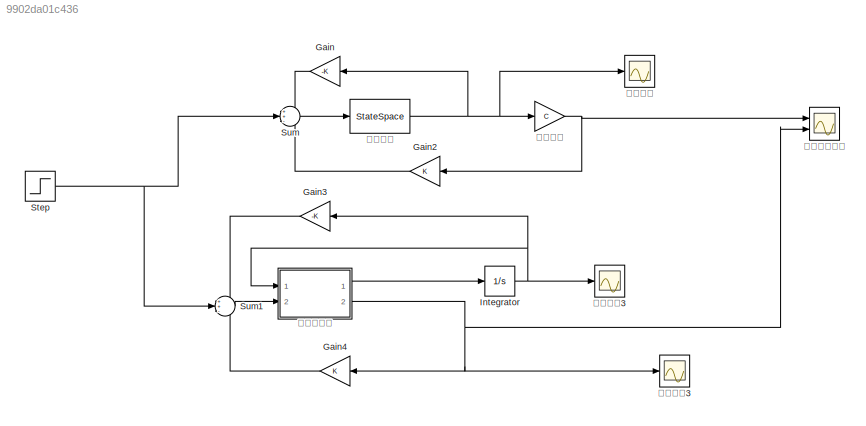
MODEL slx_9902da01c436
KIND model
CONFIG AbsTol = auto
CONFIG FixedStep = auto
CONFIG MaxStep = auto
CONFIG MinStep = auto
CONFIG RelTol = 1e-3
CONFIG SampleTimeConstraint = Unconstrained
CONFIG Solver = VariableStepAuto
CONFIG SolverMode = SingleTasking
CONFIG SolverName = VariableStepAuto
CONFIG StartTime = 0.0
CONFIG StopTime = 20.0
BLOCK [Gain] Gain
  Gain = -K
  Multiplication = Matrix(K*u)
BLOCK [Gain] Gain2
BLOCK [Gain] Gain3
  Gain = -K
  Multiplication = Matrix(K*u)
BLOCK [Gain] Gain4
BLOCK [Integrator] Integrator
  InitialCondition = Init
  Ports = [1, 1]
BLOCK [Step] Step
  SampleTime = 0
BLOCK [Sum] Sum
  Inputs = ++-
  Ports = [3, 1]
BLOCK [Sum] Sum1
  Inputs = ++-
  Ports = [3, 1]
BLOCK [StateSpace] 状态变量
  A = A1
  B = B1
  C = eye(4)
  D = [0;0;0;0]
  Ports = [1, 1]
  X0 = Init
BLOCK [Scope] 状态响应
  Floating = off
  NumInputPorts = 1
  Ports = [1]
  ScopeSpecificationString = Simulink.scopes.TimeScopeBlockCfg('CurrentConfiguration', extmgr.ConfigurationSet(extmgr.Configuration('Core','General UI',true,'FigureColor',[0.941176470588235 0.941176470588235 0.941176470588235]),extmgr.Configuration('Core','Source UI',true),extmgr.Configuration('Sources','WiredSimulink',true,'DataLoggingVariableName','ScopeData1'),extmgr.Configuration('Visuals','Time Domain',true,'SerializedDi...<+1737ch>
BLOCK [Scope] 状态响应3
  Floating = off
  NumInputPorts = 1
  Ports = [1]
  ScopeSpecificationString = Simulink.scopes.TimeScopeBlockCfg('CurrentConfiguration', extmgr.ConfigurationSet(extmgr.Configuration('Core','General UI',true,'FigureColor',[0.941176470588235 0.941176470588235 0.941176470588235]),extmgr.Configuration('Core','Source UI',true),extmgr.Configuration('Sources','WiredSimulink',true,'DataLoggingVariableName','ScopeData3'),extmgr.Configuration('Visuals','Time Domain',true,'SerializedDi...<+1824ch>
BLOCK [Gain] 线性系统
  Gain = C
  Multiplication = Matrix(K*u)
BLOCK [Scope] 输出响应3
  Floating = off
  NumInputPorts = 1
  Ports = [1]
  ScopeSpecificationString = Simulink.scopes.TimeScopeBlockCfg('CurrentConfiguration', extmgr.ConfigurationSet(extmgr.Configuration('Core','General UI',true,'FigureColor',[0.941176470588235 0.941176470588235 0.941176470588235]),extmgr.Configuration('Core','Source UI',true),extmgr.Configuration('Sources','WiredSimulink',true,'DataLoggingVariableName','ScopeData4'),extmgr.Configuration('Visuals','Time Domain',true,'SerializedDi...<+1807ch>
BLOCK [Scope] 输出响应比较
  Floating = off
  NumInputPorts = 2
  Ports = [2]
  ScopeSpecificationString = Simulink.scopes.TimeScopeBlockCfg('CurrentConfiguration', extmgr.ConfigurationSet(extmgr.Configuration('Core','General UI',true,'FigureColor',[1 1 1]),extmgr.Configuration('Core','Source UI',true),extmgr.Configuration('Sources','WiredSimulink',true),extmgr.Configuration('Visuals','Time Domain',true,'SerializedDisplays',{struct('MinYLimReal','-0.29651','MaxYLimReal','1.13024','YLabelReal','幅值','Min...<+1753ch>
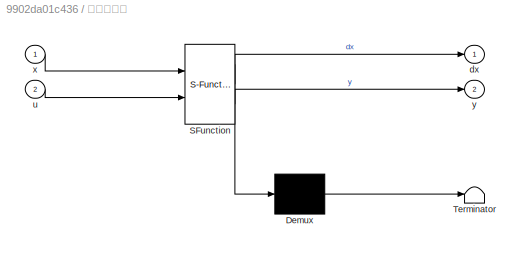
BLOCK [SubSystem] 非线性系统
  ErrorFcn = Stateflow.Translate.translate
  PermitHierarchicalResolution = ExplicitOnly
  Ports = [2, 2]
  RequestExecContextInheritance = off
  SFBlockType = MATLAB Function
  TreatAsAtomicUnit = on
BLOCK [Demux] 非线性系统/ Demux 
  Outputs = 1
  Ports = [1, 1]
BLOCK [S-Function] 非线性系统/ SFunction 
  EnableBusSupport = on
  FunctionName = sf_sfun
  PortCounts = [2 3]
  Ports = [2, 3]
  SFunctionDeploymentMode = off
  Tag = Stateflow S-Function Daolibai_design_SFandOFtu 4
BLOCK [Terminator] 非线性系统/ Terminator 
BLOCK [Outport] 非线性系统/dx
BLOCK [Inport] 非线性系统/u
  Port = 2
BLOCK [Inport] 非线性系统/x
BLOCK [Outport] 非线性系统/y
  Port = 2
LINE Gain2:1 -> Sum:3
LINE Gain3:1 -> Sum1:1
LINE Gain4:1 -> Sum1:3
LINE Gain:1 -> Sum:1
NET Integrator:1 -> Gain3:1, 状态响应3:1, 非线性系统:1
NET Step:1 -> Sum1:2, Sum:2
LINE Sum1:1 -> 非线性系统:2
LINE Sum:1 -> 状态变量:1
NET 状态变量:1 -> Gain:1, 状态响应:1, 线性系统:1
NET 线性系统:1 -> Gain2:1, 输出响应比较:1
LINE 非线性系统:1 -> Integrator:1
NET 非线性系统:2 -> Gain4:1, 输出响应3:1, 输出响应比较:2
note: NET lines group one-source signal fan-out (src -> all destinations, sorted); 1:1 wires keep LINE
CHART 非线性系统 states=1 transitions=1
  STATE_LABEL 'eML_blk_kernel()'
  STATE_LABEL 'SCRIPT:\nfunction [dx,y] = fcn(x,u)\ndx = zeros(4,1);\nM = 1;\nm = 0.1;\nl = 0.5;\ng = 9.8;\ndx(1) = x(2);\ndx(2) = (u+m*l*x(4)^2*sin(x(3))-m*g*sin(x(3))*cos(x(3)))/(M+m-m*cos(x(3))^2);\ndx(3) = x(4);\ndx(4) = (-u*cos(x(3))+(M+m)*g*sin(x(3))-m*l*x(4)^2*sin(x(3))*cos(x(3)))/((M+m)*l-m*l*cos(x(3))^2);\ny = x(1);'
